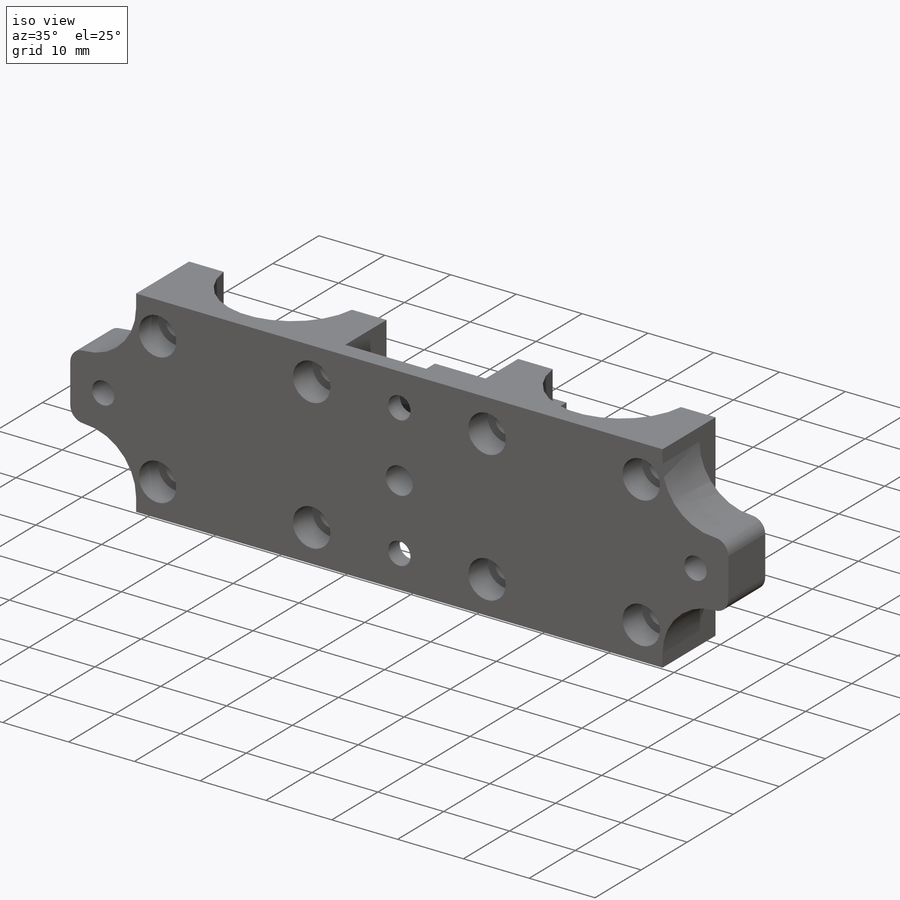
[diagram: iso view]
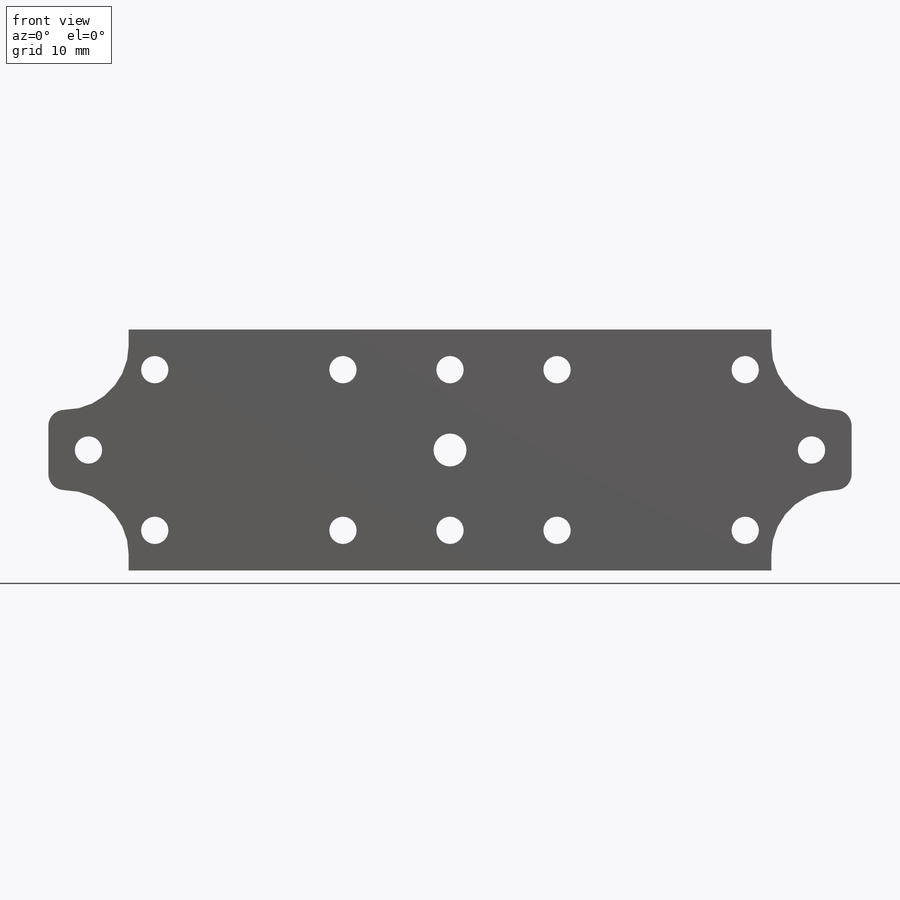
[diagram: front view]
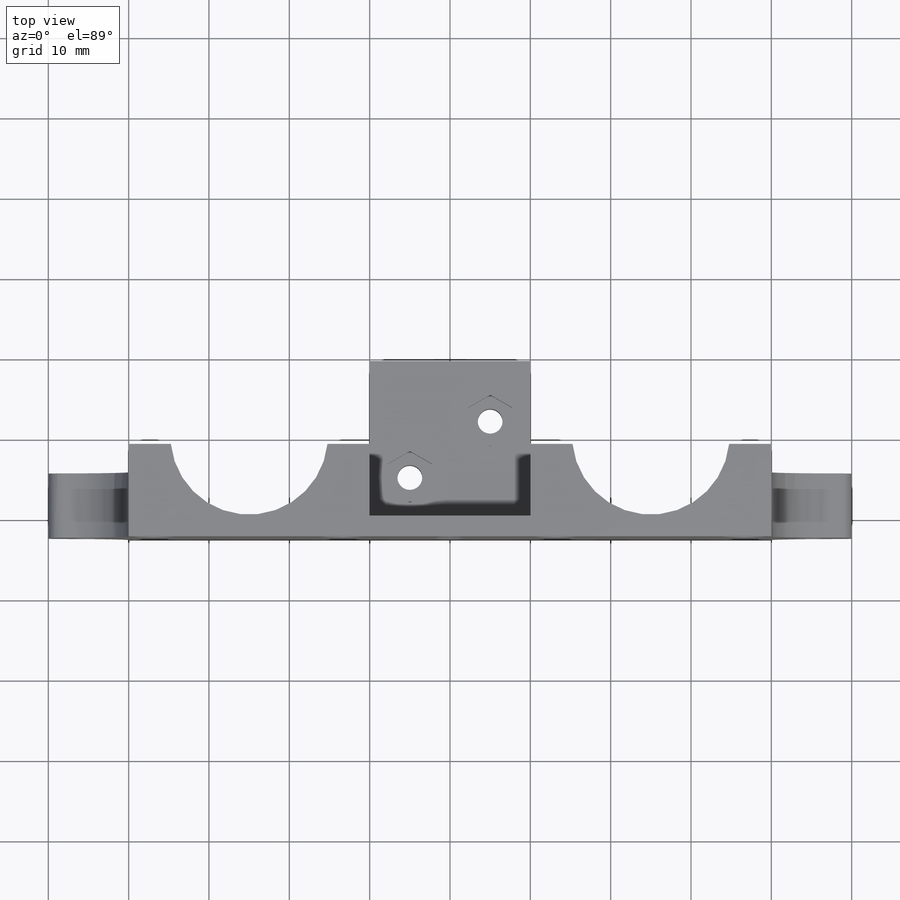
[diagram: top view]
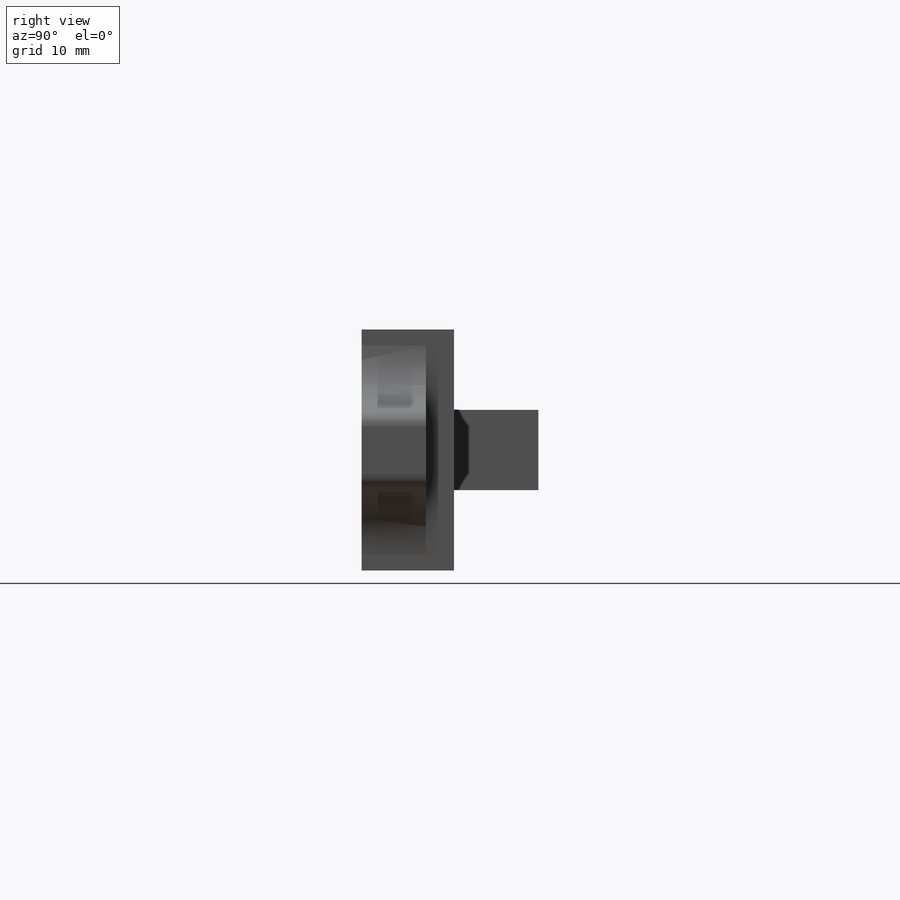
[diagram: right view]
SOLIDWORKS PART (.sldprt)
format: sldprt  version: not decoded by parser v0  size: 521,216 bytes
history: native  units: mm
features: sketch x17, cut_extrude x5, plane x3, extrude x3, hole x3, fillet x2, material x1 (+10 scaffold rows collapsed)
feature tree (44):
  scaffold x10  (default folders/planes/origin — collapsed)
  material  "Material <nicht angegeben>"
  plane  "Ebene vorne"
  plane  "Ebene oben"
  plane  "Ebene rechts"
  sketch  "Skizze1"  dims[D1=25.0mm]
  extrude  "Aufsatz-Linear austragen1"  Depth=2.5mm
  sketch  "Skizze2"  dims[D1=10.0mm]
  extrude  "Aufsatz-Linear austragen2"  [1 undecoded]
  sketch  "Skizze3"  dims[D1=2.5mm]
  cut_extrude  "Schnitt-Linear austragen1"  Depth=10mm
  sketch  "Skizze4"  dims[D1=10.0mm]
  sketch  "Skizze7"  dims[c1.D2=20.0mm c1.D1=5.0mm c2.D2=3.0mm]
  hole  "Ø3.1 (3.1) Durchmesser Bohrung2"  Diameter=3.1mm Depth=20mm
  sketch  "Skizze12"
  sketch  "Skizze10"  dims[hole-wizard template sketch: 59 standard entries collapsed; hole parameters kept: c18.Bohrerdurchmesser=3.1mm c18.Bohrungstiefe=20.0mm]
  sketch  "Skizze13"
  hole  "Ø4.1 (4.1) Durchmesser Bohrung1"  Diameter=4.1mm Depth=22mm
  sketch  "Skizze15"
  sketch  "Skizze14"  dims[hole-wizard template sketch: 59 standard entries collapsed; hole parameters kept: c18.Bohrerdurchmesser=4.1mm c18.Bohrungstiefe=22.0mm]
  sketch  "Skizze16"  dims[D1=20.0mm]
  cut_extrude  "Schnitt-Linear austragen2"  Depth=10mm
  hole  "Stirnsenkung für M3 Senkschraube (Kopf Button)2"  Diameter=3.4mm Depth=22mm
  sketch  "Skizze21"  dims[D1=1.0mm]
  sketch  "Skizze22"  dims[hole-wizard template sketch: 41 standard entries collapsed; hole parameters kept: c12.Bohrerdurchmesser=3.4mm c12.Bohrungstiefe=22.0mm c12.Senkdurchmesser2=5.7mm c12.Senktiefe2=4.2mm]
  sketch  "Skizze23"  dims[D1=~1.823943mm]
  cut_extrude  "Schnitt-Linear austragen3"  Depth=5mm
  sketch  "Skizze24"  dims[D1=~2.840924mm]
  cut_extrude  "Schnitt-Linear austragen4"  Depth=3mm
  sketch  "Skizze25"  dims[D1=10.0mm]
  extrude  "Aufsatz-Linear austragen3"  Depth=8mm
  sketch  "Skizze26"  dims[D1=~2.435118mm]
  cut_extrude  "Schnitt-Linear austragen5"  Depth=4mm
  fillet  "Verrundung1"  Radius=8mm
  fillet  "Verrundung2"  Radius=2mm
decode coverage: 26 of 30 modeling features carry decoded parameters
note: ~ marks probable driven/reference dimensions
note: 1 parameter value undecoded
note: suppression state not decoded; provenance and decode notes live in map.json
